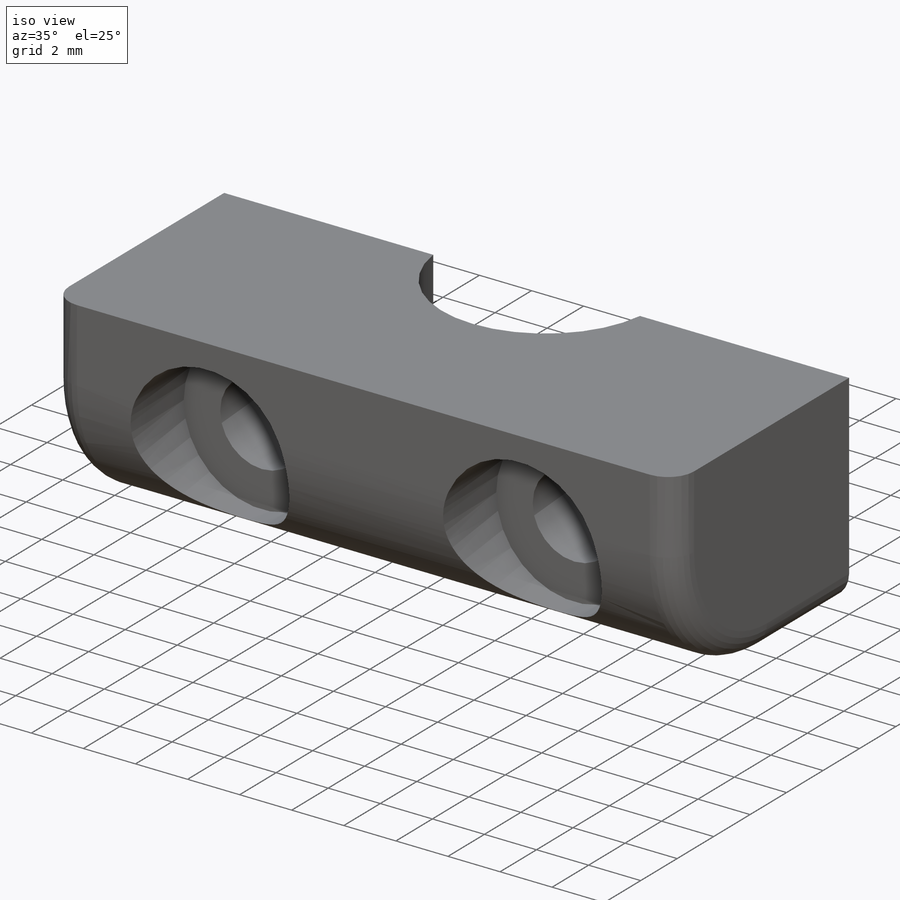
[diagram: iso view]
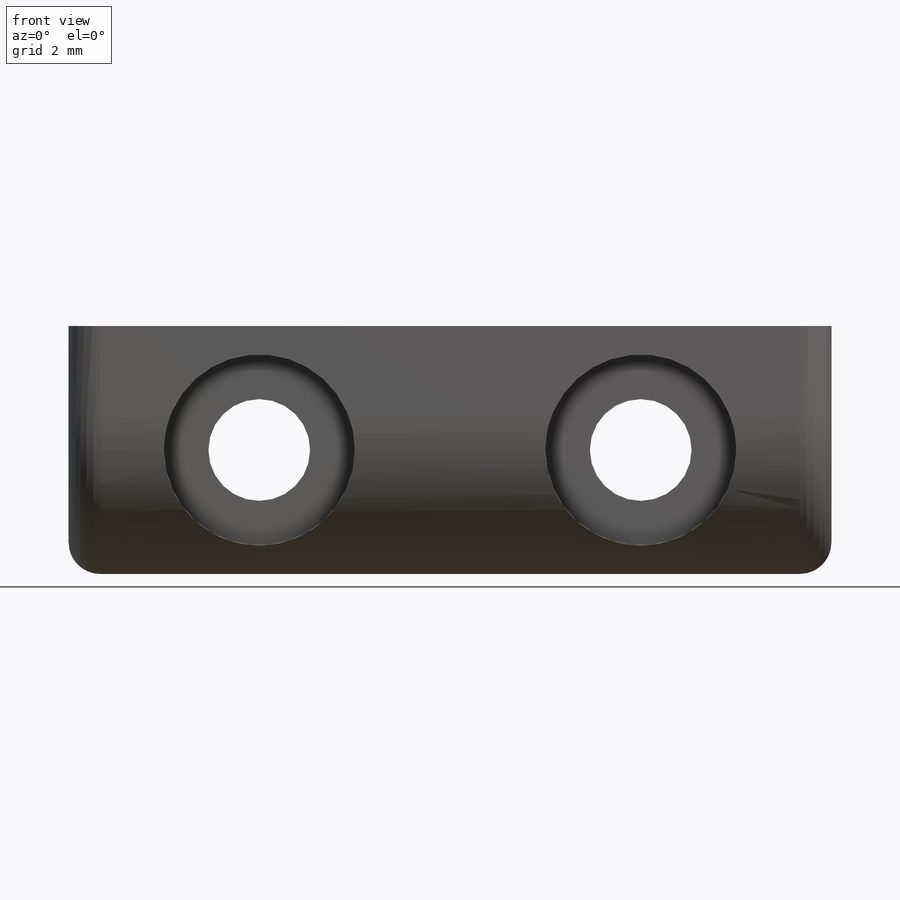
[diagram: front view]
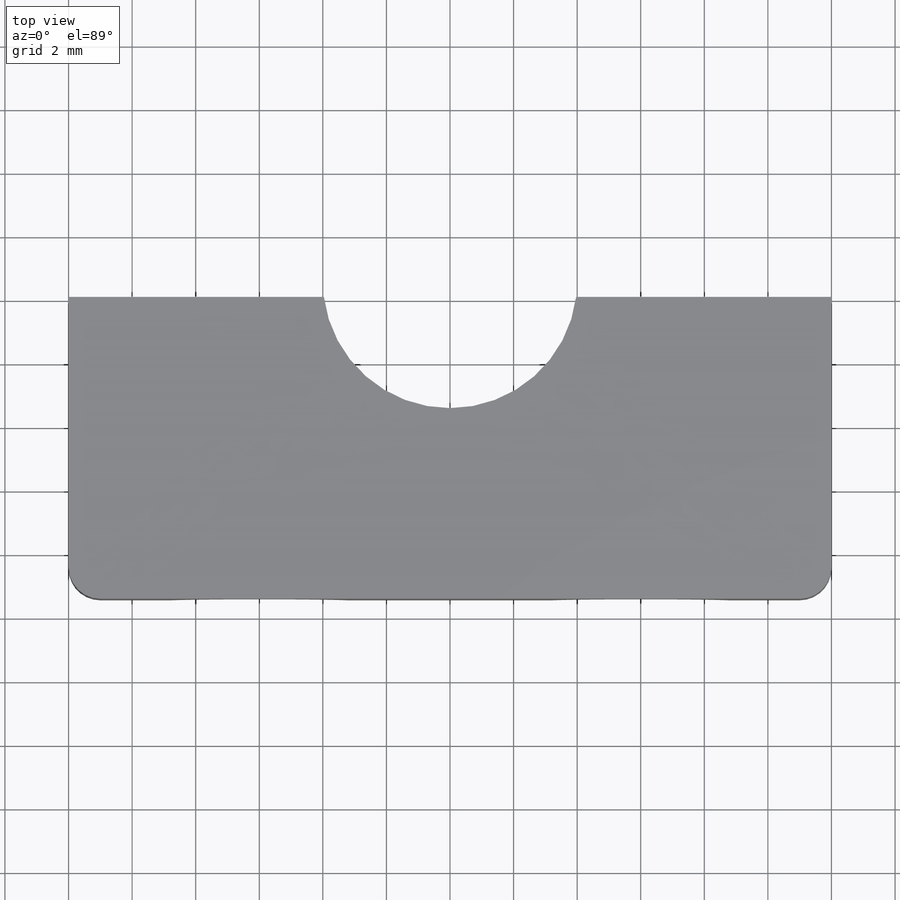
[diagram: top view]
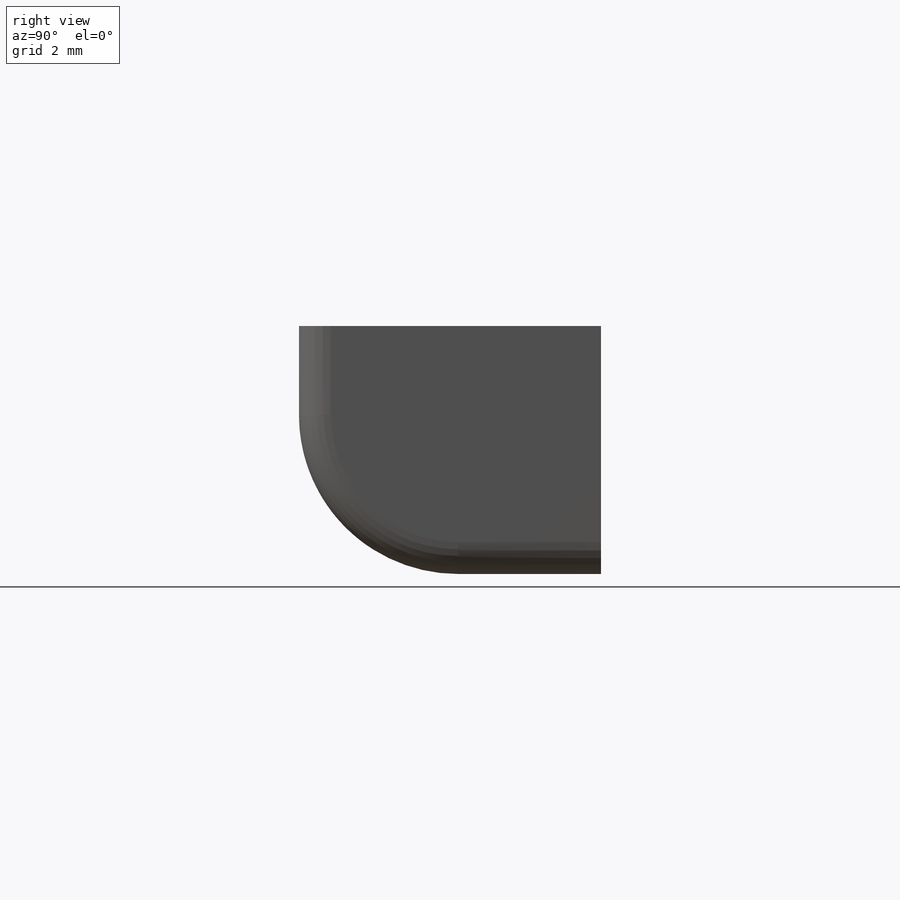
[diagram: right view]
SOLIDWORKS PART (.sldprt)
format: sldprt  version: not decoded by parser v0  size: 213,504 bytes
history: native  units: mm
features: sketch x3, cut_extrude x2, fillet x2, material x1, extrude x1 (+11 scaffold rows collapsed)
feature tree (20):
  scaffold x11  (default folders/planes/origin — collapsed)
  material  "Material <not specified>"
  sketch  "Sketch1"  dims[D3=3.2mm D4=3.2mm D1=24.0mm D2=7.8mm D5=12.0mm]
  extrude  "Boss-Extrude1"  Depth=9.5mm
  sketch  "Sketch2"  dims[D2=8.0mm D1=12.0mm D3=0.5mm]
  cut_extrude  "Cut-Extrude1"  [1 undecoded]
  sketch  "Sketch3"  dims[D1=6.0mm]
  cut_extrude  "Cut-Extrude2"  Depth=3mm
  fillet  "Fillet1"  Radius=5mm
  fillet  "Fillet2"  Radius=1mm
decode coverage: 7 of 8 modeling features carry decoded parameters
note: 1 parameter value undecoded
note: suppression state not decoded; provenance and decode notes live in map.json
